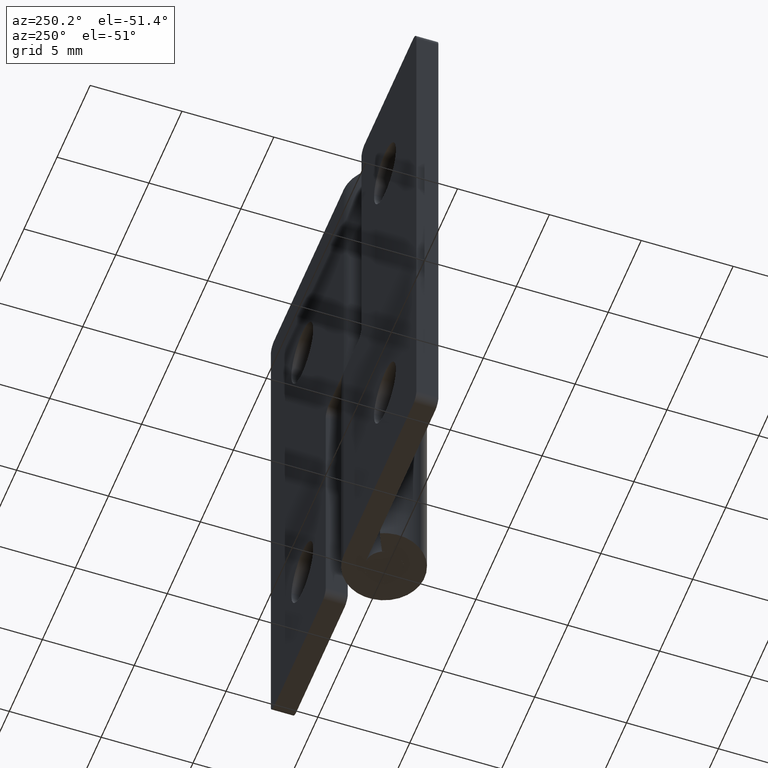
[diagram: clean part render]
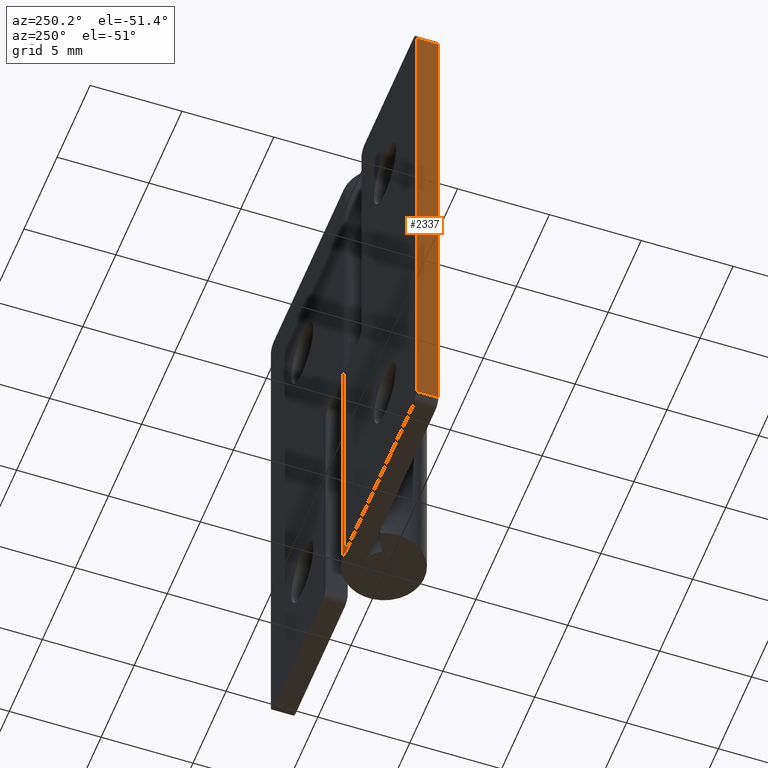
[diagram: same view with one face highlighted and labeled with its STEP entity id]
A machine part, auxiliary view. The second image highlights one B-rep face of the part: STEP entity #2337.
In plain terms, the highlighted face is a freeform B-spline surface patch.
Its self-contained STEP definition (entity closure, byte-faithful):
#2003=CARTESIAN_POINT('',(-11.0,1.0,29.500000000000000));
#2004=VERTEX_POINT('',#2003);
#2025=CARTESIAN_POINT('',(-11.0,2.200000999999950,29.500000000000000));
#2026=VERTEX_POINT('',#2025);
#2040=CARTESIAN_POINT('',(-11.0,2.200000999999950,29.500000000000000));
#2041=CARTESIAN_POINT('',(-11.0,1.0,29.500000000000000));
#2042=QUASI_UNIFORM_CURVE('',1,(#2040,#2041),.UNSPECIFIED.,.F.,.U.);
#2043=EDGE_CURVE('',#2026,#2004,#2042,.T.);
#2115=CARTESIAN_POINT('',(-11.0,1.0,0.500000000000014));
#2116=VERTEX_POINT('',#2115);
#2132=CARTESIAN_POINT('',(-11.0,2.200000999999950,0.500000000000014));
#2133=VERTEX_POINT('',#2132);
#2134=CARTESIAN_POINT('',(-11.0,2.200000999999950,0.500000000000014));
#2135=CARTESIAN_POINT('',(-11.0,1.0,0.500000000000014));
#2136=QUASI_UNIFORM_CURVE('',1,(#2134,#2135),.UNSPECIFIED.,.F.,.U.);
#2137=EDGE_CURVE('',#2133,#2116,#2136,.T.);
#2318=CARTESIAN_POINT('',(-11.0,0.940059952375837,-0.948549943792358));
#2319=CARTESIAN_POINT('',(-11.0,0.940059952375837,30.948550721632980));
#2320=CARTESIAN_POINT('',(-11.0,2.259941079810648,-0.948549943792358));
#2321=CARTESIAN_POINT('',(-11.0,2.259941079810648,30.948550721632980));
#2322=B_SPLINE_SURFACE_WITH_KNOTS('',1,1,((#2318,#2320),(#2319,#2321)),.UNSPECIFIED.,.F.,.F.,.U.,(2,2),(2,2),(0.0,31.897100665425342),(0.041708334948495,0.958291687403247),.UNSPECIFIED.);
#2323=ORIENTED_EDGE('',*,*,#2043,.F.);
#2324=CARTESIAN_POINT('',(-11.0,2.200000999999950,0.500000000000014));
#2325=CARTESIAN_POINT('',(-11.0,2.200000999999950,29.500000000000000));
#2326=QUASI_UNIFORM_CURVE('',1,(#2324,#2325),.UNSPECIFIED.,.F.,.U.);
#2327=EDGE_CURVE('',#2133,#2026,#2326,.T.);
#2328=ORIENTED_EDGE('',*,*,#2327,.F.);
#2329=ORIENTED_EDGE('',*,*,#2137,.T.);
#2330=CARTESIAN_POINT('',(-11.0,1.0,0.500000000000014));
#2331=CARTESIAN_POINT('',(-11.0,1.0,29.500000000000000));
#2332=QUASI_UNIFORM_CURVE('',1,(#2330,#2331),.UNSPECIFIED.,.F.,.U.);
#2333=EDGE_CURVE('',#2116,#2004,#2332,.T.);
#2334=ORIENTED_EDGE('',*,*,#2333,.T.);
#2335=EDGE_LOOP('',(#2323,#2328,#2329,#2334));
#2336=FACE_OUTER_BOUND('',#2335,.T.);
#2337=ADVANCED_FACE('',(#2336),#2322,.T.);